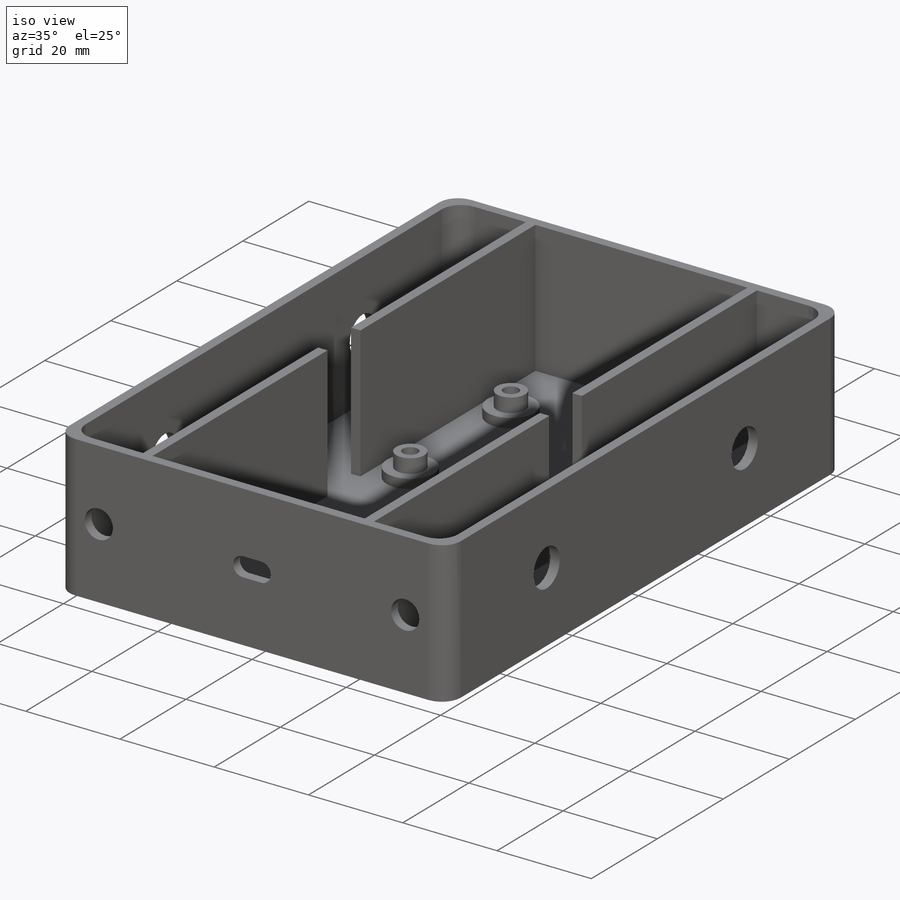
[diagram: iso view]
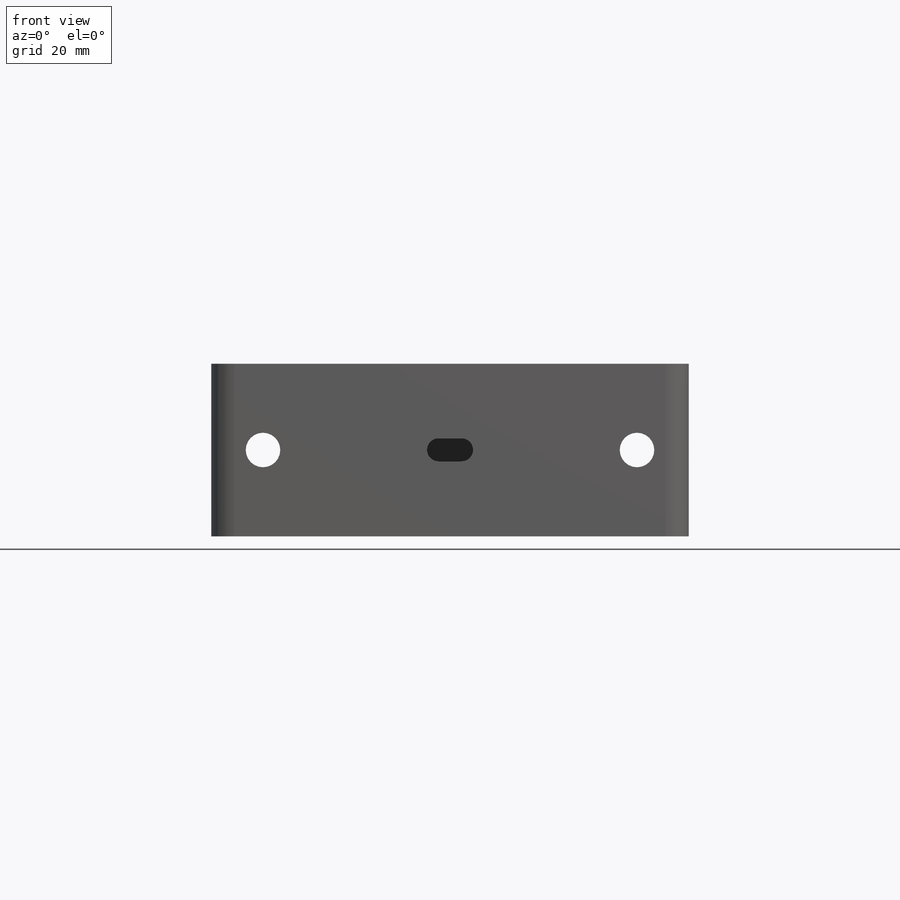
[diagram: front view]
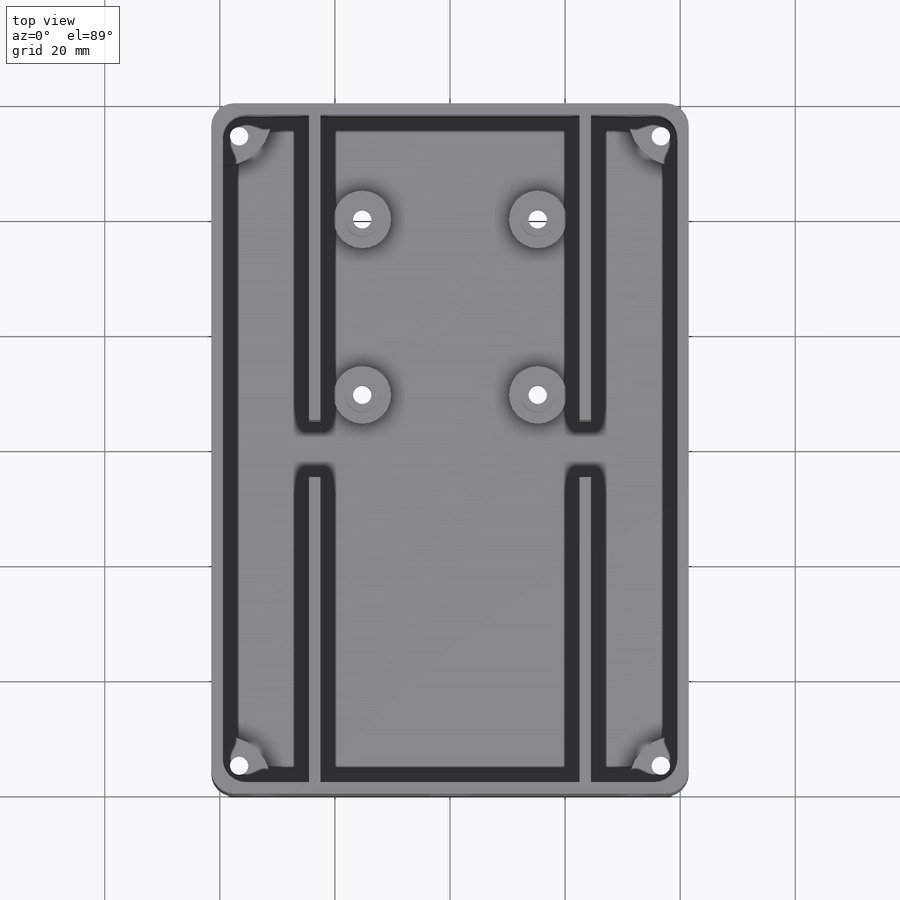
[diagram: top view]
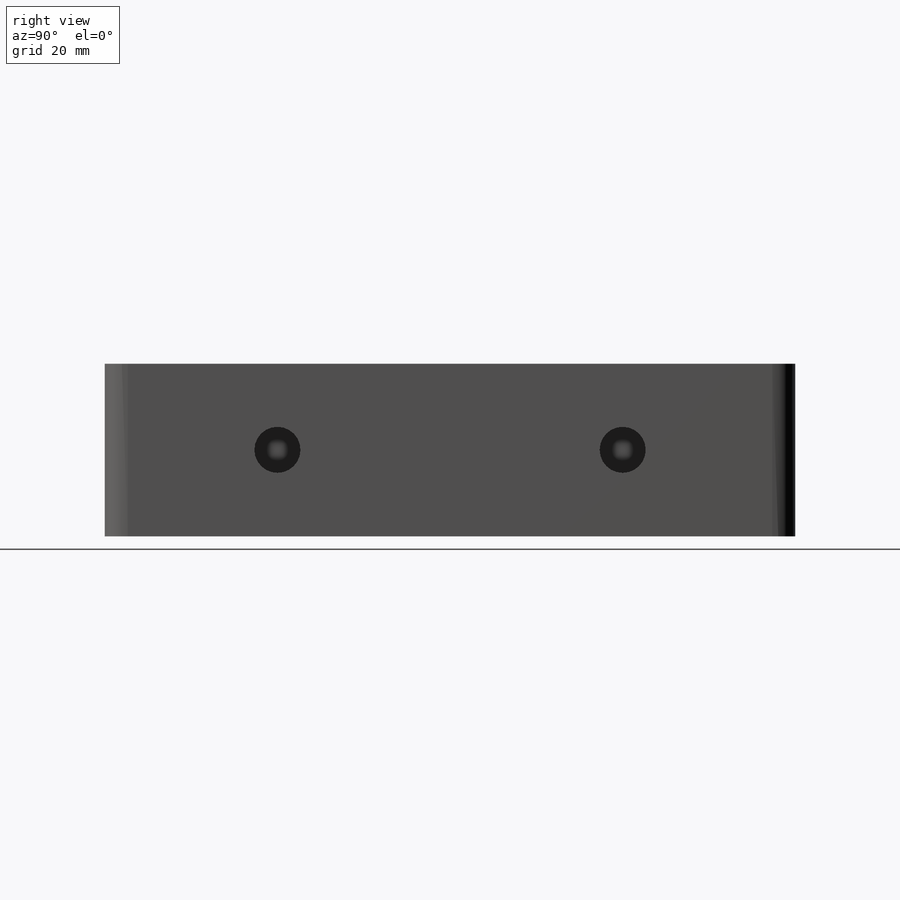
[diagram: right view]
SOLIDWORKS PART (.sldprt)
format: sldprt  version: not decoded by parser v0  size: 747,008 bytes
history: native  units: mm
features: sketch x16, cut_extrude x13, extrude x3, fillet x2, material x1 (+12 scaffold rows collapsed)
feature tree (47):
  scaffold x12  (default folders/planes/origin — collapsed)
  material  "Material <not specified>"
  sketch  "Sketch2"  dims[D1=30.0mm D2=83.0mm]
  extrude  "Boss-Extrude1"  Depth=120mm
  sketch  "Sketch4"  dims[c1.D12=2.5mm c1.D14=2.5mm c1.D15=2.5mm c2.D14=2.5mm c2.D16=~0.29479mm c2.D18=5.0mm c2.D19=2.5mm c2.D20=~2.542084mm c2.D22=5.0mm c2.D23=2.5mm c2.D24=~1.74149mm c2.D26=5.0mm c2.D27=2.5mm c2.D12=8.5mm c2.D13=17.0mm c3.D14=8.5mm c3.D12=17.0mm c4.D14=17.0mm c4.D15=17.0mm c4.D1=2.0mm c4.D2=2.0mm c4.D3=2.0mm c4.D4=2.0mm c4.D5=2.0mm c4.D6=2.0mm c4.D7=15.0mm c4.D8=15.0mm c4.D9=10.0mm c4.D10=57.0mm c5.D9=5.0mm c5.D10=5.0mm c5.D11=53.0mm c5.D12=1.25mm c5.D13=1.25mm c5.D16=1.25mm c5.D17=1.25mm c5.D20=1.25mm c5.D21=1.25mm c5.D24=1.25mm c5.D25=1.25mm c6.D12=5.7mm]
  cut_extrude  "Cut-Extrude1"  Depth=28mm
  sketch  "Sketch5"  dims[D2=6.0mm D6=6.0mm D1=15.0mm D3=2.0mm D4=2.0mm D5=15.0mm]
  cut_extrude  "Cut-Extrude3"  [1 undecoded]
  sketch  "Sketch6"  dims[D1=4.0mm]
  cut_extrude  "Cut-Extrude4"  [1 undecoded]
  sketch  "Sketch10"  dims[c1.D4=~3.354537mm c1.D8=3.2mm c1.D9=6.0mm c1.D10=6.0mm c1.D11=3.2mm c1.D12=3.2mm c1.D13=6.0mm c2.D8=6.0mm c2.D9=3.2mm c2.D14=3.2mm c2.D15=6.0mm c2.D16=8.0mm c2.D17=8.0mm c2.D18=8.0mm c2.D19=8.0mm c2.D1=36.0mm c2.D2=36.0mm c2.D3=15.0mm c2.D4=30.5mm c2.D5=30.5mm c2.D6=15.25mm c2.D7=15.25mm]
  extrude  "Boss-Extrude2"  Depth=5mm
  sketch  "Sketch13"  dims[D1=10.0mm D2=10.0mm D3=10.0mm D4=10.0mm]
  extrude  "Boss-Extrude-cc3d-support"  Depth=2mm
  sketch  "Sketch11"  dims[D1=5.7mm D2=5.7mm D3=5.7mm D4=5.7mm]
  cut_extrude  "Cut-Extrude7"  Depth=1mm
  cut_extrude  "Cut-Extrude-cc3d-round"  [1 undecoded]
  sketch  "Sketch10<3>"  dims[D1=5.0mm D2=10.0mm]
  sketch  "Sketch14"  dims[c1.D2=3.2mm c1.D8=~1.33149mm c2.D2=3.2mm c2.D8=3.2mm c2.D12=3.2mm c2.D16=3.2mm c2.D21=3.2mm c2.D22=3.2mm c2.D23=3.2mm c2.D24=3.2mm c2.D1=5.7mm c3.D2=2.0mm c3.D3=2.0mm c3.D4=2.0mm c3.D5=2.0mm c4.D3=5.7mm c4.D6=2.0mm c4.D7=2.0mm c4.D9=5.7mm c4.D10=2.0mm c4.D11=2.0mm c4.D13=5.7mm c4.D14=2.0mm c4.D15=2.0mm c4.D17=5.7mm c4.D18=5.7mm c4.D19=5.7mm c4.D20=5.7mm c4.D25=~5.290897mm c4.D26=4.85mm]
  cut_extrude  "Cut-Extrude-bottom-hex-corners"  Depth=3.5mm
  cut_extrude  "Cut-Extrude-bottom-hex-cc3d"  [1 undecoded]
  sketch  "Sketch14<5>"  dims[D1=2.5mm]
  cut_extrude  "Cut-Extrude-bottom-round"  [1 undecoded]
  sketch  "Sketch14<4>"
  cut_extrude  "Cut-Extrude12"  [1 undecoded]
  sketch  "Sketch4<5>"  dims[D1=25.0mm]
  sketch  "Sketch8"  dims[c1.D4=6.0mm c1.D5=8.0mm c1.D6=8.0mm c1.D7=6.0mm c2.D4=~4.126796mm c2.D1=30.0mm c2.D2=30.0mm c2.D3=30.0mm c2.D8=9.0mm c2.D9=9.0mm c3.D4=5.0mm]
  cut_extrude  "Cut-Holes-Right"  [1 undecoded]
  cut_extrude  "Cut-Holes-Left"  [1 undecoded]
  sketch  "Sketch8<4>"
  fillet  "Fillet1_4mm"  Radius=4mm
  fillet  "Fillet2"  Radius=2mm
  sketch  "Sketch15"  dims[c1.D1=~2.401727mm c1.D5=6.0mm c1.D6=6.0mm c2.D1=15.0mm c2.D2=15.0mm c2.D3=5.0mm c2.D4=5.0mm]
  cut_extrude  "Cut-Extrude14"  [1 undecoded]
  cut_extrude  "Cut-Extrude15"  [1 undecoded]
  sketch  "Sketch15<2>"
decode coverage: 21 of 34 modeling features carry decoded parameters
note: ~ marks probable driven/reference dimensions
note: 10 parameter values undecoded
summary: no parameter record found for 10 features
note: suppression state not decoded; provenance and decode notes live in map.json
